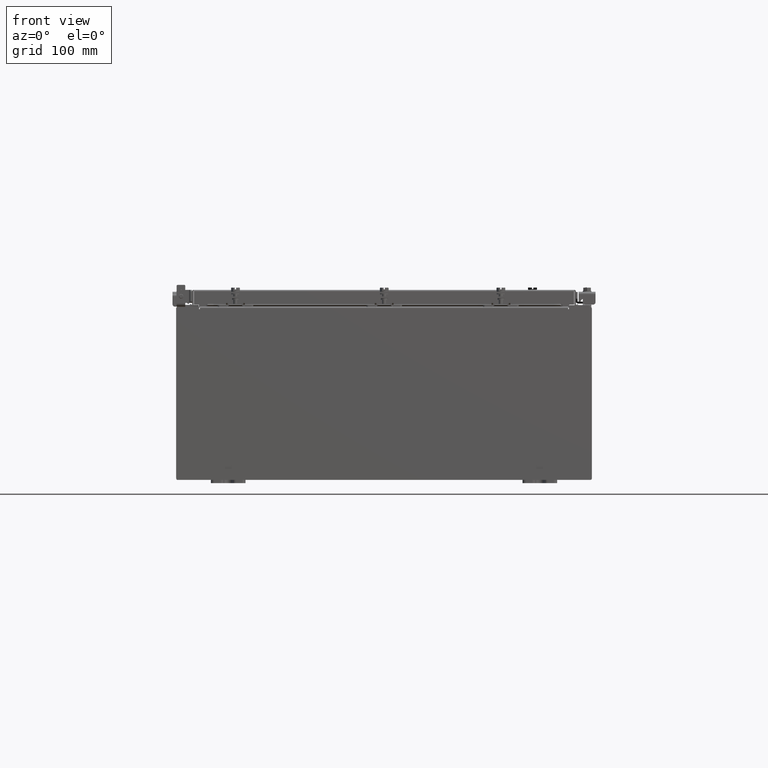
[diagram: clean part render]
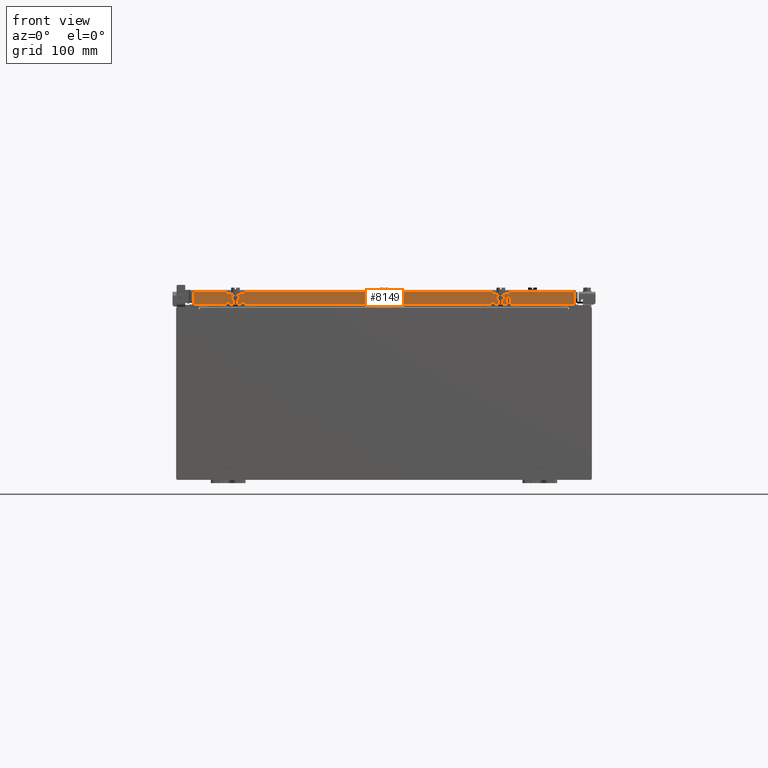
[diagram: same view with one face highlighted and labeled with its STEP entity id]
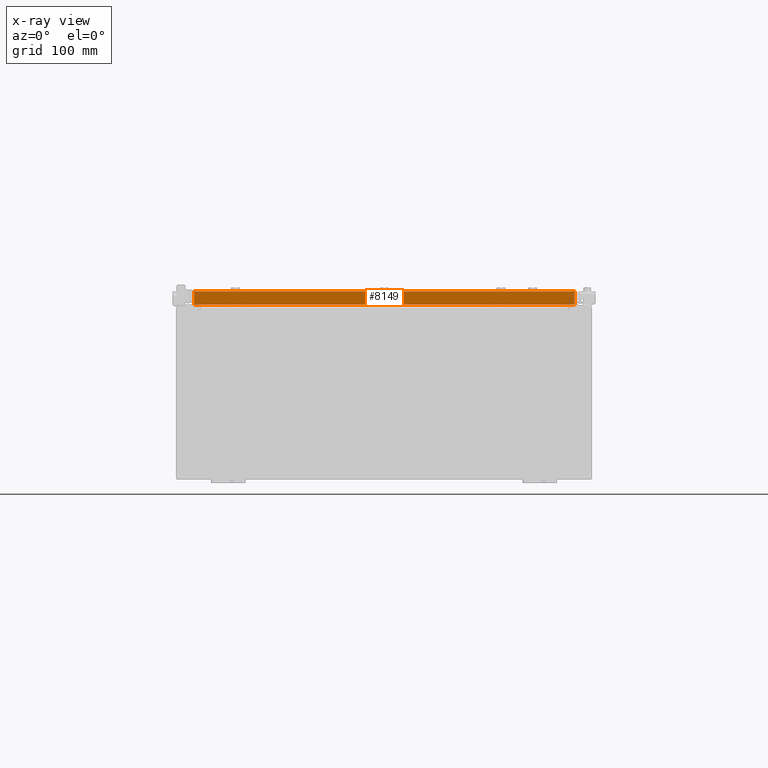
[diagram: x-ray of the same camera — body ghosted, the highlighted face saturated]
A machine part, front view. The second image highlights one B-rep face of the part: STEP entity #8149.
The next image is the same camera in x-ray: the body ghosted, the highlighted face saturated — about 0% of this face is hidden behind the body in this view.
In plain terms, the highlighted planar face has unit normal (0, 1, -0).
Its self-contained STEP definition (entity closure, byte-faithful):
#250 = CARTESIAN_POINT ( 'NONE',  ( 10.98915786437624400, -14.09400000000000100, -0.08770000000000224800 ) ) ;
#461 = DIRECTION ( 'NONE',  ( -1.000000000000000000, 9.864047639156033700E-017, 1.233005954894504400E-016 ) ) ;
#1236 = LINE ( 'NONE', #7667, #10222 ) ;
#1338 = LINE ( 'NONE', #7301, #20354 ) ;
#1661 = CARTESIAN_POINT ( 'NONE',  ( 10.23915786437626900, -14.09399999999999900, -0.8500000000000012000 ) ) ;
#1852 = EDGE_CURVE ( 'NONE', #11547, #9843, #13922, .T. ) ;
#2067 = PLANE ( 'NONE',  #2461 ) ;
#2461 = AXIS2_PLACEMENT_3D ( 'NONE', #19964, #9262, #21738 ) ;
#2473 = DIRECTION ( 'NONE',  ( 0.0000000000000000000, -2.818880942772360500E-015, -1.000000000000000000 ) ) ;
#3200 = DIRECTION ( 'NONE',  ( 1.000000000000000000, -9.864047639155999200E-017, -9.196021172131615100E-046 ) ) ;
#3534 = LINE ( 'NONE', #15677, #7688 ) ;
#3535 = VERTEX_POINT ( 'NONE', #4375 ) ;
#4375 = CARTESIAN_POINT ( 'NONE',  ( 10.23915786437626700, -14.09399999999999900, -0.8500000000000012000 ) ) ;
#4448 = VECTOR ( 'NONE', #9759, 39.37007874015748100 ) ;
#4788 = VERTEX_POINT ( 'NONE', #21637 ) ;
#5193 = CARTESIAN_POINT ( 'NONE',  ( 10.98915786437626900, -14.09400000000000300, -0.8499999999999996400 ) ) ;
#5541 = DIRECTION ( 'NONE',  ( -1.000000000000000000, 9.864047639156033700E-017, 1.233005954894504400E-016 ) ) ;
#7301 = CARTESIAN_POINT ( 'NONE',  ( 11.07799999999999800, -14.09400000000000300, -0.8499999999999996400 ) ) ;
#7642 = FACE_OUTER_BOUND ( 'NONE', #8701, .T. ) ;
#7667 = CARTESIAN_POINT ( 'NONE',  ( 11.07799999999999800, -14.09400000000000300, -0.8499999999999996400 ) ) ;
#7688 = VECTOR ( 'NONE', #3200, 39.37007874015748100 ) ;
#8149 = ADVANCED_FACE ( 'NONE', ( #7642 ), #2067, .F. ) ;
#8564 = LINE ( 'NONE', #15004, #13282 ) ;
#8701 = EDGE_LOOP ( 'NONE', ( #18349, #17942, #17251, #21989, #14956, #9761 ) ) ;
#8896 = DIRECTION ( 'NONE',  ( -1.000000000000000000, 0.0000000000000000000, 0.0000000000000000000 ) ) ;
#9262 = DIRECTION ( 'NONE',  ( 9.864047639155998000E-017, 1.000000000000000000, -2.818880942772360500E-015 ) ) ;
#9601 = VERTEX_POINT ( 'NONE', #20838 ) ;
#9759 = DIRECTION ( 'NONE',  ( 0.0000000000000000000, -2.818880942772360500E-015, -1.000000000000000000 ) ) ;
#9761 = ORIENTED_EDGE ( 'NONE', *, *, #1852, .F. ) ;
#9838 = CARTESIAN_POINT ( 'NONE',  ( 10.98915786437626900, -14.09400000000000100, -0.07469999999999978000 ) ) ;
#9843 = VERTEX_POINT ( 'NONE', #5193 ) ;
#10222 = VECTOR ( 'NONE', #461, 39.37007874015748100 ) ;
#10719 = EDGE_CURVE ( 'NONE', #3535, #4788, #19579, .T. ) ;
#11504 = EDGE_CURVE ( 'NONE', #9843, #3535, #1338, .T. ) ;
#11547 = VERTEX_POINT ( 'NONE', #250 ) ;
#13282 = VECTOR ( 'NONE', #2473, 39.37007874015748100 ) ;
#13922 = LINE ( 'NONE', #9838, #4448 ) ;
#14171 = EDGE_CURVE ( 'NONE', #4788, #9601, #1236, .T. ) ;
#14839 = VECTOR ( 'NONE', #8896, 39.37007874015748100 ) ;
#14956 = ORIENTED_EDGE ( 'NONE', *, *, #11504, .F. ) ;
#15004 = CARTESIAN_POINT ( 'NONE',  ( -10.98915786437626900, -14.09399999999999900, 3.999012166344522900E-014 ) ) ;
#15677 = CARTESIAN_POINT ( 'NONE',  ( 11.07799999999999900, -14.09400000000000100, -0.08770000000000224800 ) ) ;
#17213 = VERTEX_POINT ( 'NONE', #21919 ) ;
#17251 = ORIENTED_EDGE ( 'NONE', *, *, #14171, .F. ) ;
#17285 = EDGE_CURVE ( 'NONE', #17213, #9601, #8564, .T. ) ;
#17942 = ORIENTED_EDGE ( 'NONE', *, *, #17285, .T. ) ;
#18140 = EDGE_CURVE ( 'NONE', #17213, #11547, #3534, .T. ) ;
#18349 = ORIENTED_EDGE ( 'NONE', *, *, #18140, .F. ) ;
#19579 = LINE ( 'NONE', #1661, #14839 ) ;
#19964 = CARTESIAN_POINT ( 'NONE',  ( -1.390238874262646300E-015, -14.09399999999999900, 3.999012166344522900E-014 ) ) ;
#20354 = VECTOR ( 'NONE', #5541, 39.37007874015748100 ) ;
#20838 = CARTESIAN_POINT ( 'NONE',  ( -10.98915786437626900, -14.09400000000000100, -0.8499999999999969800 ) ) ;
#21637 = CARTESIAN_POINT ( 'NONE',  ( -10.23915786437626900, -14.09399999999999900, -0.8500000000000012000 ) ) ;
#21738 = DIRECTION ( 'NONE',  ( 0.0000000000000000000, 2.818880942772360500E-015, 1.000000000000000000 ) ) ;
#21919 = CARTESIAN_POINT ( 'NONE',  ( -10.98915786437626700, -14.09399999999999900, -0.08770000000000224800 ) ) ;
#21989 = ORIENTED_EDGE ( 'NONE', *, *, #10719, .F. ) ;